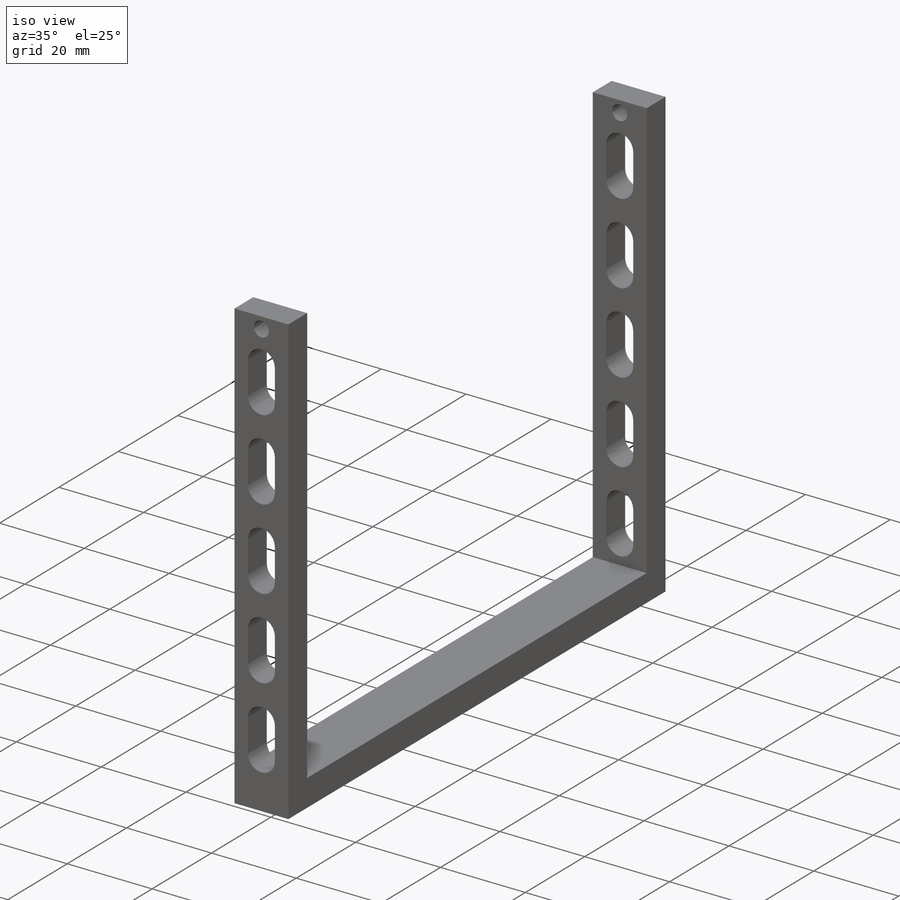
[diagram: iso view]
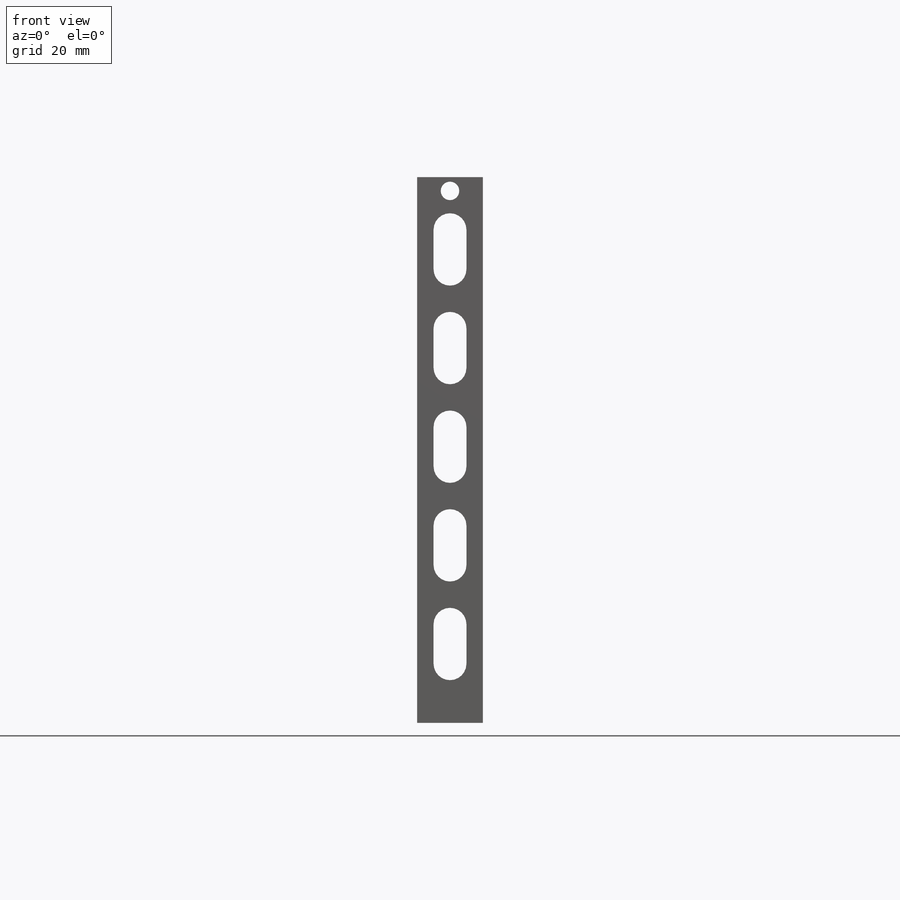
[diagram: front view]
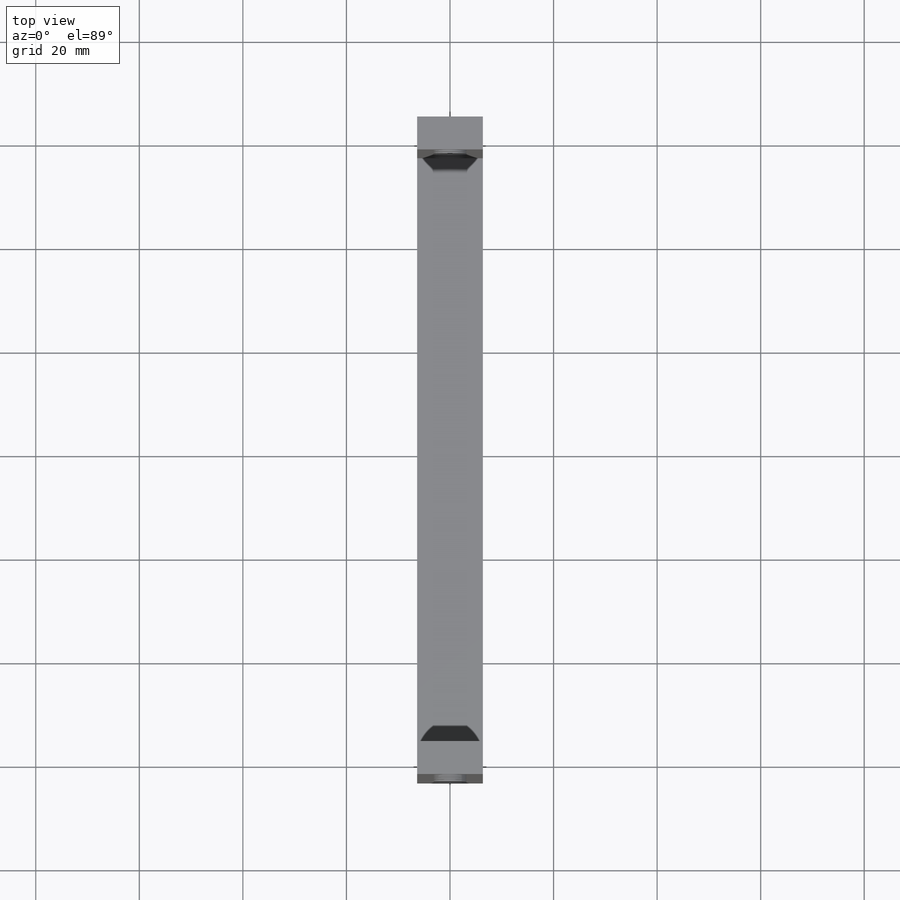
[diagram: top view]
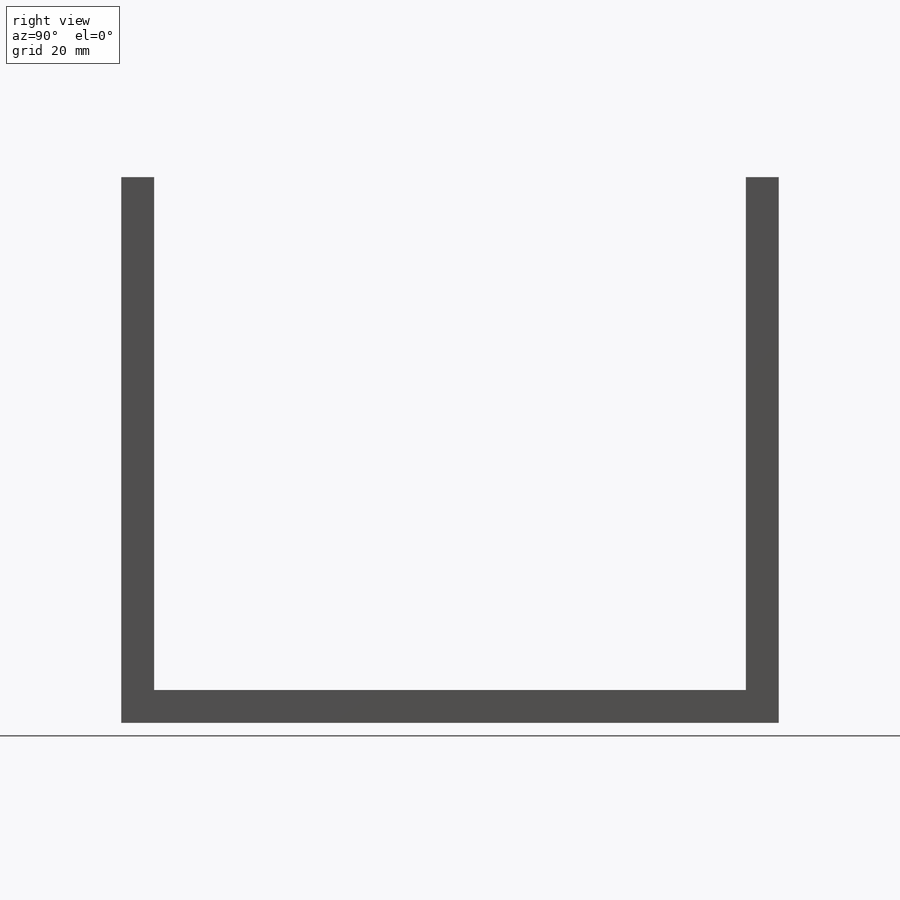
[diagram: right view]
SOLIDWORKS PART (.sldprt)
format: sldprt  version: not decoded by parser v0  size: 246,272 bytes
history: native  units: mm
features: sketch x6, extrude x3, material x1, cut_extrude x1, pattern_linear x1, hole x1 (+11 scaffold rows collapsed)
feature tree (24):
  scaffold x11  (default folders/planes/origin — collapsed)
  material  "6061 Alloy"
  sketch  "Sketch1"  dims[D1=12.7mm D2=6.35mm]
  extrude  "Boss-Extrude1"  Depth=105.41mm
  sketch  "Sketch2"  dims[D1=6.35mm]
  extrude  "Boss-Extrude2"  Depth=127mm
  sketch  "Sketch3"  dims[D1=6.35mm]
  extrude  "Boss-Extrude3"  Depth=105.41mm
  sketch  "Sketch4"  dims[D2=3.175mm D1=7.62mm D3=10.16mm]
  cut_extrude  "Cut-Extrude1"  [1 undecoded]
  pattern_linear  "LPattern1"  Count1=5 Count2=1 Spacing1=19.05mm Spacing2=2.54mm
  hole  "9/64 (0.14063) Diameter Hole1"  Diameter=3.572002mm Depth=127mm
  sketch  "Sketch8"  dims[D1=2.667mm]
  sketch  "Sketch7"  dims[hole-wizard template sketch: 59 standard entries collapsed; hole parameters kept: c18.Thru Hole Dia.=~3.572002mm c18.Thru Hole Depth=127.0mm]
decode coverage: 11 of 12 modeling features carry decoded parameters
note: ~ marks probable driven/reference dimensions
note: 1 parameter value undecoded
note: suppression state not decoded; provenance and decode notes live in map.json
